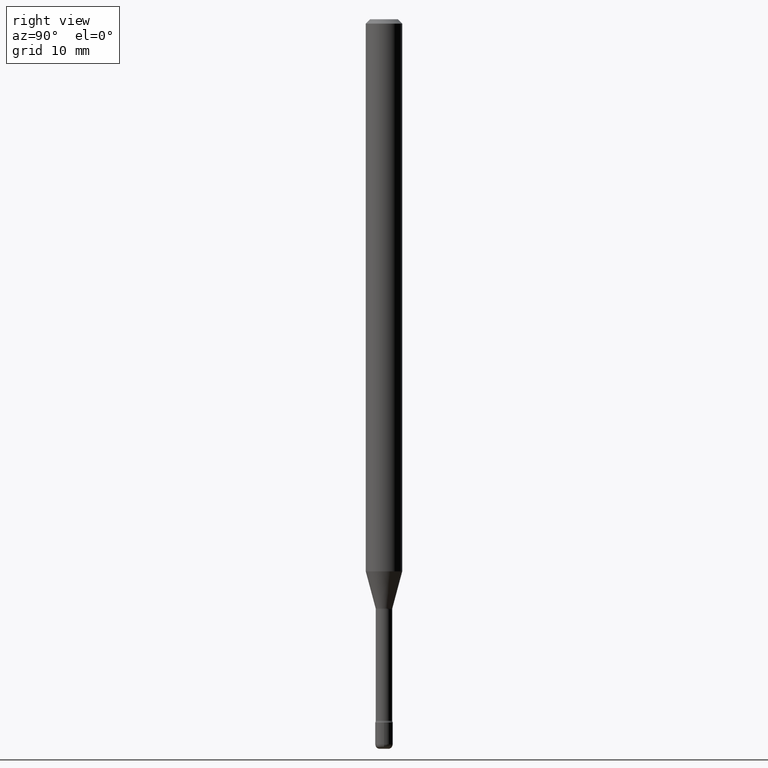
[diagram: clean part render]
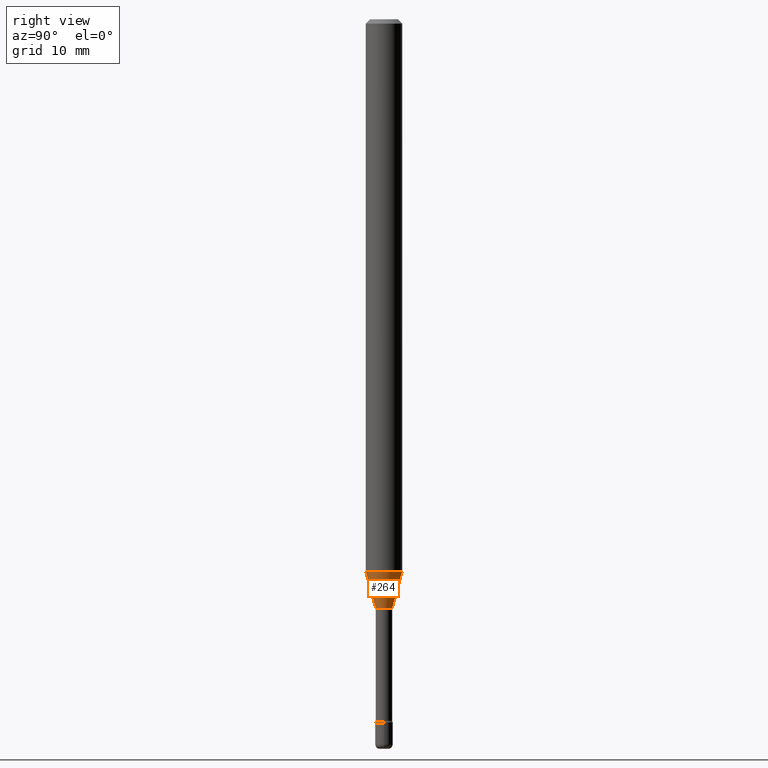
[diagram: same view with one face highlighted and labeled with its STEP entity id]
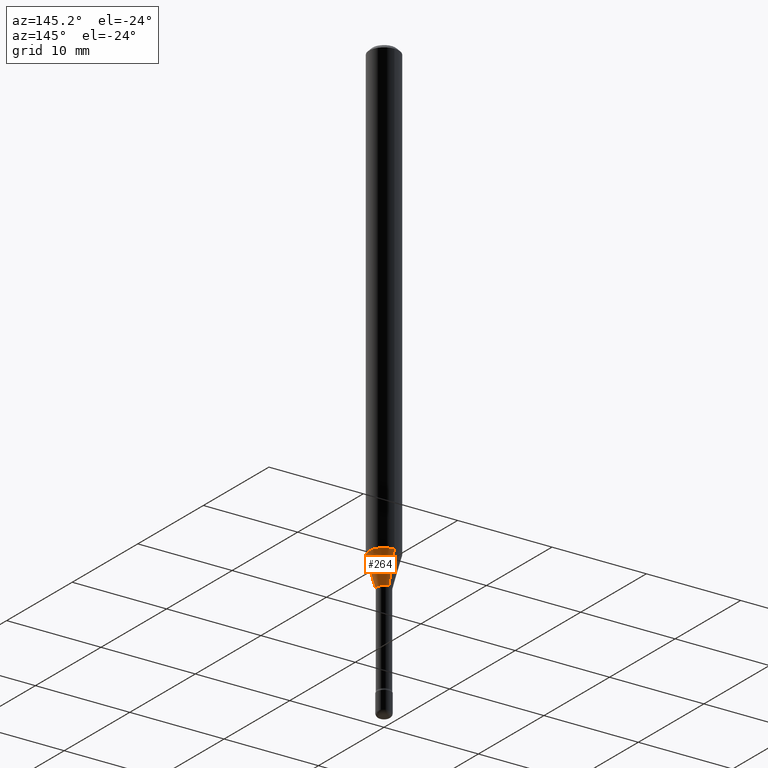
[diagram: same view with one face highlighted and labeled with its STEP entity id]
A machine part, right view. The second image highlights one B-rep face of the part: STEP entity #264.
A second angle (auxiliary view) of the same face is appended — the face is thin or edge-on in the first view.
In plain terms, the highlighted conical surface has half-angle 15 deg.
Its self-contained STEP definition (entity closure, byte-faithful):
#6 = ORIENTED_EDGE ( 'NONE', *, *, #490, .F. ) ;
#62 = VERTEX_POINT ( 'NONE', #100 ) ;
#67 = CARTESIAN_POINT ( 'NONE',  ( 4.935233746620405795E-29, -7.046058579878147233E-15, -2.018092501787273285 ) ) ;
#91 = VERTEX_POINT ( 'NONE', #415 ) ;
#100 = CARTESIAN_POINT ( 'NONE',  ( 3.240469674128031254E-16, 0.02871111260565693823, -2.018092501787273285 ) ) ;
#101 = ORIENTED_EDGE ( 'NONE', *, *, #121, .T. ) ;
#103 = CONICAL_SURFACE ( 'NONE', #437, 0.02871111260566398468, 0.2617993877991500740 ) ;
#121 = EDGE_CURVE ( 'NONE', #62, #286, #209, .T. ) ;
#126 = DIRECTION ( 'NONE',  ( -1.807323732225328562E-15, -0.2588190451025179639, 0.9659258262890690894 ) ) ;
#131 = AXIS2_PLACEMENT_3D ( 'NONE', #525, #449, #141 ) ;
#141 = DIRECTION ( 'NONE',  ( -6.982962677686265133E-15, -1.000000000000000000, 0.000000000000000000 ) ) ;
#174 = CARTESIAN_POINT ( 'NONE',  ( 4.626852402419585505E-29, -6.605780950137001921E-15, -1.891990657300387735 ) ) ;
#177 = LINE ( 'NONE', #307, #485 ) ;
#209 = LINE ( 'NONE', #473, #336 ) ;
#225 = VERTEX_POINT ( 'NONE', #565 ) ;
#246 = EDGE_CURVE ( 'NONE', #225, #62, #469, .T. ) ;
#264 = ADVANCED_FACE ( 'NONE', ( #468 ), #103, .T. ) ;
#271 = DIRECTION ( 'NONE',  ( -6.982962677686265133E-15, -1.000000000000000000, 0.000000000000000000 ) ) ;
#286 = VERTEX_POINT ( 'NONE', #549 ) ;
#292 = ORIENTED_EDGE ( 'NONE', *, *, #385, .F. ) ;
#307 = CARTESIAN_POINT ( 'NONE',  ( -2.004886277601499384E-16, -0.02871111260567103113, -2.018092501787273285 ) ) ;
#314 = DIRECTION ( 'NONE',  ( -2.445494318149261734E-29, 3.491444804258467311E-15, 1.000000000000000000 ) ) ;
#320 = ORIENTED_EDGE ( 'NONE', *, *, #246, .T. ) ;
#336 = VECTOR ( 'NONE', #351, 39.37007874015748854 ) ;
#337 = CIRCLE ( 'NONE', #376, 0.06250000000000000000 ) ;
#351 = DIRECTION ( 'NONE',  ( 1.839019923739598738E-15, 0.2588190451025247363, 0.9659258262890673130 ) ) ;
#376 = AXIS2_PLACEMENT_3D ( 'NONE', #174, #314, #478 ) ;
#381 = EDGE_LOOP ( 'NONE', ( #320, #101, #6, #292 ) ) ;
#385 = EDGE_CURVE ( 'NONE', #225, #91, #177, .T. ) ;
#415 = CARTESIAN_POINT ( 'NONE',  ( -4.364351673553456197E-16, -0.06250000000000664746, -1.891990657300387513 ) ) ;
#429 = DIRECTION ( 'NONE',  ( -2.445494318149261734E-29, 3.491444804258467311E-15, 1.000000000000000000 ) ) ;
#437 = AXIS2_PLACEMENT_3D ( 'NONE', #67, #429, #271 ) ;
#449 = DIRECTION ( 'NONE',  ( -2.445494318149261734E-29, 3.491444804258467311E-15, 1.000000000000000000 ) ) ;
#468 = FACE_OUTER_BOUND ( 'NONE', #381, .T. ) ;
#469 = CIRCLE ( 'NONE', #131, 0.02871111260566398468 ) ;
#473 = CARTESIAN_POINT ( 'NONE',  ( 2.040047249754971658E-16, 0.02871111260565693823, -2.018092501787273285 ) ) ;
#478 = DIRECTION ( 'NONE',  ( -6.982962677686265922E-15, -1.000000000000000000, 4.370956789862821150E-15 ) ) ;
#485 = VECTOR ( 'NONE', #126, 39.37007874015748854 ) ;
#490 = EDGE_CURVE ( 'NONE', #91, #286, #337, .T. ) ;
#525 = CARTESIAN_POINT ( 'NONE',  ( 4.935233746620405795E-29, -7.046058579878147233E-15, -2.018092501787273285 ) ) ;
#549 = CARTESIAN_POINT ( 'NONE',  ( 4.440892098501086659E-16, 0.06249999999999337336, -1.891990657300388179 ) ) ;
#565 = CARTESIAN_POINT ( 'NONE',  ( -2.004886277601499384E-16, -0.02871111260567103113, -2.018092501787273285 ) ) ;